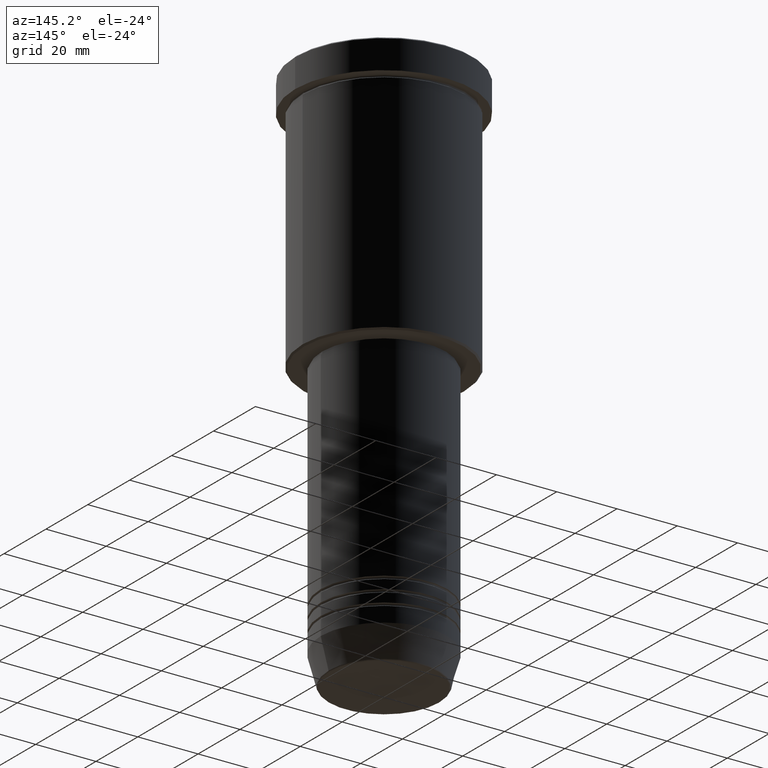
[diagram: clean part render]
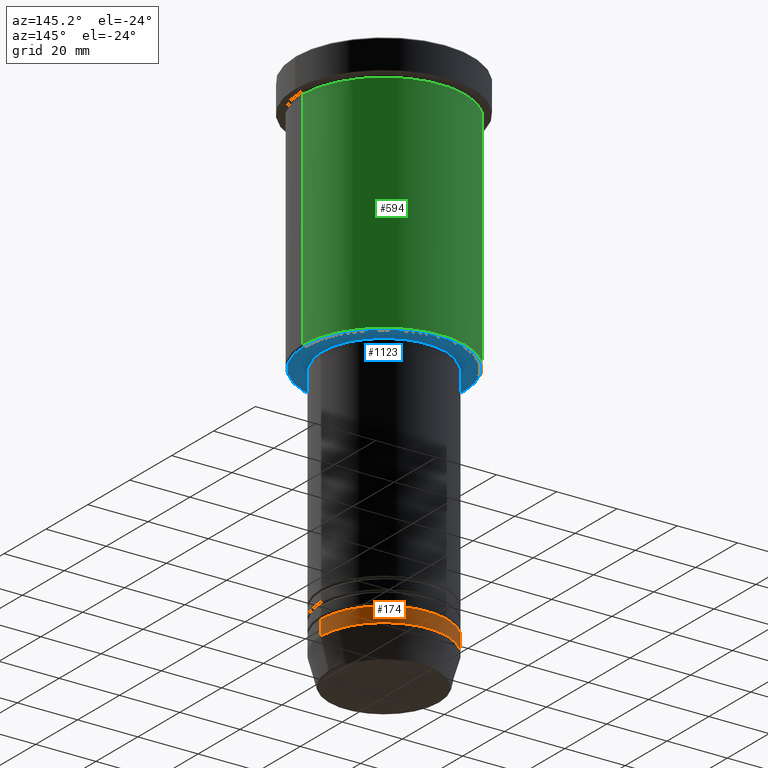
[diagram: same view with three faces highlighted in distinct colors, each labeled with its STEP entity id]
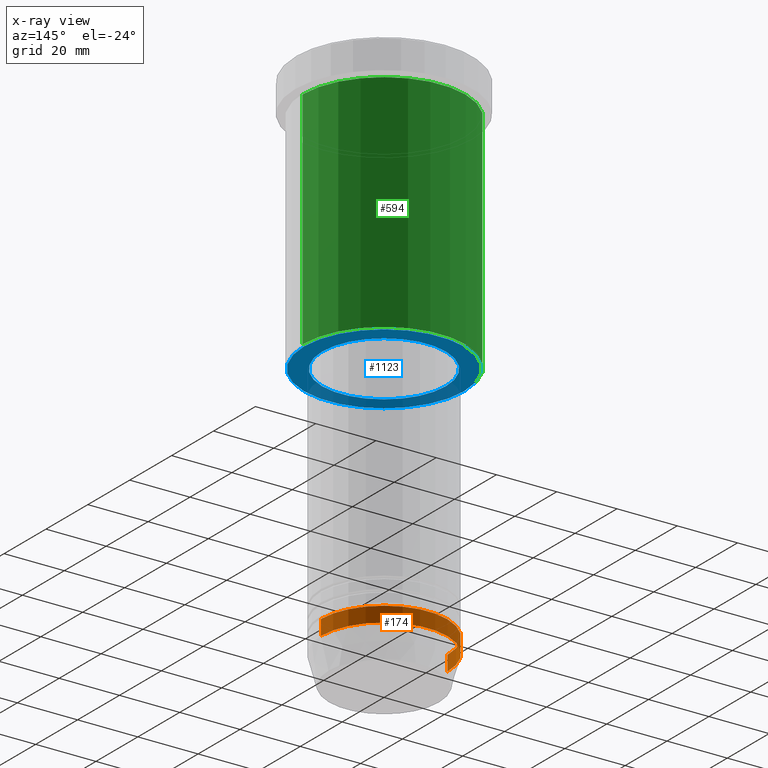
[diagram: x-ray of the same camera — body ghosted, the three highlighted faces saturated]
A machine part, auxiliary view with three faces highlighted in distinct colors.
The next image is the same camera in x-ray (body ghosted, the three faces saturated) — at least one of them is partly hidden behind the body in this view.
Their STEP definitions:

[orange] entity #174 — the highlighted cylindrical surface (partial cylindrical patch) has radius 21 mm, axis along (-0, -0, 1).
#15 = LINE ( 'NONE', #733, #451 ) ;
#54 = DIRECTION ( 'NONE',  ( 1.000000000000000000, 0.000000000000000000, 0.000000000000000000 ) ) ;
#76 = EDGE_CURVE ( 'NONE', #655, #413, #309, .T. ) ;
#102 = DIRECTION ( 'NONE',  ( -0.000000000000000000, -0.000000000000000000, 1.000000000000000000 ) ) ;
#131 = CARTESIAN_POINT ( 'NONE',  ( 21.00000000000000000, 0.000000000000000000, -165.9999999999999716 ) ) ;
#164 = CARTESIAN_POINT ( 'NONE',  ( 0.000000000000000000, 0.000000000000000000, -165.9999999999999716 ) ) ;
#174 = ADVANCED_FACE ( 'NONE', ( #1136 ), #316, .T. ) ;
#189 = CARTESIAN_POINT ( 'NONE',  ( -21.00000000000000000, 2.571758278209441661E-15, -170.9999999999999716 ) ) ;
#220 = ORIENTED_EDGE ( 'NONE', *, *, #231, .F. ) ;
#231 = EDGE_CURVE ( 'NONE', #984, #655, #826, .T. ) ;
#245 = EDGE_CURVE ( 'NONE', #984, #432, #433, .T. ) ;
#269 = CARTESIAN_POINT ( 'NONE',  ( 21.00000000000000000, 0.000000000000000000, 0.000000000000000000 ) ) ;
#296 = EDGE_LOOP ( 'NONE', ( #440, #1176, #800, #220 ) ) ;
#309 = CIRCLE ( 'NONE', #726, 21.00000000000000000 ) ;
#316 = CYLINDRICAL_SURFACE ( 'NONE', #682, 21.00000000000000000 ) ;
#401 = DIRECTION ( 'NONE',  ( -0.000000000000000000, -0.000000000000000000, 1.000000000000000000 ) ) ;
#413 = VERTEX_POINT ( 'NONE', #436 ) ;
#432 = VERTEX_POINT ( 'NONE', #189 ) ;
#433 = CIRCLE ( 'NONE', #1108, 21.00000000000000000 ) ;
#436 = CARTESIAN_POINT ( 'NONE',  ( -21.00000000000000000, 2.571758278209441661E-15, -165.9999999999999716 ) ) ;
#440 = ORIENTED_EDGE ( 'NONE', *, *, #245, .T. ) ;
#451 = VECTOR ( 'NONE', #102, 1000.000000000000000 ) ;
#606 = DIRECTION ( 'NONE',  ( 1.000000000000000000, 0.000000000000000000, 0.000000000000000000 ) ) ;
#655 = VERTEX_POINT ( 'NONE', #131 ) ;
#673 = DIRECTION ( 'NONE',  ( -0.000000000000000000, -0.000000000000000000, 1.000000000000000000 ) ) ;
#682 = AXIS2_PLACEMENT_3D ( 'NONE', #882, #673, #54 ) ;
#693 = CARTESIAN_POINT ( 'NONE',  ( 21.00000000000000000, 0.000000000000000000, -170.9999999999999716 ) ) ;
#726 = AXIS2_PLACEMENT_3D ( 'NONE', #164, #401, #606 ) ;
#733 = CARTESIAN_POINT ( 'NONE',  ( -21.00000000000000000, 2.571758278209441661E-15, 0.000000000000000000 ) ) ;
#800 = ORIENTED_EDGE ( 'NONE', *, *, #76, .F. ) ;
#813 = DIRECTION ( 'NONE',  ( -0.000000000000000000, -0.000000000000000000, 1.000000000000000000 ) ) ;
#826 = LINE ( 'NONE', #269, #857 ) ;
#857 = VECTOR ( 'NONE', #813, 1000.000000000000000 ) ;
#861 = EDGE_CURVE ( 'NONE', #432, #413, #15, .T. ) ;
#865 = DIRECTION ( 'NONE',  ( -0.000000000000000000, -0.000000000000000000, 1.000000000000000000 ) ) ;
#882 = CARTESIAN_POINT ( 'NONE',  ( 0.000000000000000000, 0.000000000000000000, 0.000000000000000000 ) ) ;
#975 = CARTESIAN_POINT ( 'NONE',  ( 0.000000000000000000, 0.000000000000000000, -170.9999999999999716 ) ) ;
#984 = VERTEX_POINT ( 'NONE', #693 ) ;
#1108 = AXIS2_PLACEMENT_3D ( 'NONE', #975, #865, #1141 ) ;
#1136 = FACE_OUTER_BOUND ( 'NONE', #296, .T. ) ;
#1141 = DIRECTION ( 'NONE',  ( 1.000000000000000000, 0.000000000000000000, 0.000000000000000000 ) ) ;
#1176 = ORIENTED_EDGE ( 'NONE', *, *, #861, .T. ) ;

[blue] entity #1123 — the highlighted planar face has unit normal (0, 0, -1).
#32 = VERTEX_POINT ( 'NONE', #211 ) ;
#37 = VERTEX_POINT ( 'NONE', #380 ) ;
#43 = CARTESIAN_POINT ( 'NONE',  ( 0.000000000000000000, 0.000000000000000000, -86.00000000000000000 ) ) ;
#44 = AXIS2_PLACEMENT_3D ( 'NONE', #43, #742, #127 ) ;
#58 = DIRECTION ( 'NONE',  ( -1.000000000000000000, 0.000000000000000000, 0.000000000000000000 ) ) ;
#86 = CIRCLE ( 'NONE', #675, 26.50000000000001066 ) ;
#117 = DIRECTION ( 'NONE',  ( 0.000000000000000000, 0.000000000000000000, -1.000000000000000000 ) ) ;
#127 = DIRECTION ( 'NONE',  ( 1.000000000000000000, 0.000000000000000000, 0.000000000000000000 ) ) ;
#206 = ORIENTED_EDGE ( 'NONE', *, *, #562, .T. ) ;
#211 = CARTESIAN_POINT ( 'NONE',  ( -20.50000000000000000, 2.510525938252074481E-15, -86.00000000000000000 ) ) ;
#213 = DIRECTION ( 'NONE',  ( 0.000000000000000000, 0.000000000000000000, -1.000000000000000000 ) ) ;
#238 = CARTESIAN_POINT ( 'NONE',  ( 20.50000000000000000, 0.000000000000000000, -86.00000000000000000 ) ) ;
#246 = CARTESIAN_POINT ( 'NONE',  ( 0.000000000000000000, 0.000000000000000000, -86.00000000000000000 ) ) ;
#267 = CARTESIAN_POINT ( 'NONE',  ( 0.000000000000000000, 0.000000000000000000, -86.00000000000000000 ) ) ;
#275 = FACE_BOUND ( 'NONE', #793, .T. ) ;
#380 = CARTESIAN_POINT ( 'NONE',  ( 26.50000000000001066, 0.000000000000000000, -86.00000000000000000 ) ) ;
#457 = EDGE_LOOP ( 'NONE', ( #206, #582 ) ) ;
#458 = DIRECTION ( 'NONE',  ( -1.000000000000000000, 0.000000000000000000, -0.000000000000000000 ) ) ;
#538 = DIRECTION ( 'NONE',  ( -1.000000000000000000, 0.000000000000000000, 0.000000000000000000 ) ) ;
#542 = ORIENTED_EDGE ( 'NONE', *, *, #721, .T. ) ;
#543 = FACE_OUTER_BOUND ( 'NONE', #457, .T. ) ;
#549 = CIRCLE ( 'NONE', #44, 20.50000000000000000 ) ;
#562 = EDGE_CURVE ( 'NONE', #37, #840, #737, .T. ) ;
#582 = ORIENTED_EDGE ( 'NONE', *, *, #1111, .T. ) ;
#675 = AXIS2_PLACEMENT_3D ( 'NONE', #267, #117, #538 ) ;
#721 = EDGE_CURVE ( 'NONE', #32, #990, #756, .T. ) ;
#729 = PLANE ( 'NONE',  #735 ) ;
#735 = AXIS2_PLACEMENT_3D ( 'NONE', #812, #905, #458 ) ;
#737 = CIRCLE ( 'NONE', #1124, 26.50000000000001066 ) ;
#742 = DIRECTION ( 'NONE',  ( -0.000000000000000000, -0.000000000000000000, 1.000000000000000000 ) ) ;
#756 = CIRCLE ( 'NONE', #833, 20.50000000000000000 ) ;
#792 = DIRECTION ( 'NONE',  ( 1.000000000000000000, 0.000000000000000000, 0.000000000000000000 ) ) ;
#793 = EDGE_LOOP ( 'NONE', ( #1027, #542 ) ) ;
#812 = CARTESIAN_POINT ( 'NONE',  ( 0.000000000000000000, 27.00000000000000355, -86.00000000000000000 ) ) ;
#833 = AXIS2_PLACEMENT_3D ( 'NONE', #246, #883, #792 ) ;
#840 = VERTEX_POINT ( 'NONE', #996 ) ;
#883 = DIRECTION ( 'NONE',  ( -0.000000000000000000, -0.000000000000000000, 1.000000000000000000 ) ) ;
#905 = DIRECTION ( 'NONE',  ( 0.000000000000000000, 0.000000000000000000, -1.000000000000000000 ) ) ;
#944 = EDGE_CURVE ( 'NONE', #990, #32, #549, .T. ) ;
#990 = VERTEX_POINT ( 'NONE', #238 ) ;
#996 = CARTESIAN_POINT ( 'NONE',  ( -26.50000000000001066, 3.275930187719170735E-15, -86.00000000000000000 ) ) ;
#1018 = CARTESIAN_POINT ( 'NONE',  ( 0.000000000000000000, 0.000000000000000000, -86.00000000000000000 ) ) ;
#1027 = ORIENTED_EDGE ( 'NONE', *, *, #944, .T. ) ;
#1111 = EDGE_CURVE ( 'NONE', #840, #37, #86, .T. ) ;
#1123 = ADVANCED_FACE ( 'NONE', ( #543, #275 ), #729, .T. ) ;
#1124 = AXIS2_PLACEMENT_3D ( 'NONE', #1018, #213, #58 ) ;

[green] entity #594 — the highlighted cylindrical surface (partial cylindrical patch) has radius 27 mm, axis along (-0, -0, 1).
#31 = DIRECTION ( 'NONE',  ( -1.000000000000000000, 0.000000000000000000, 0.000000000000000000 ) ) ;
#49 = DIRECTION ( 'NONE',  ( 1.000000000000000000, 0.000000000000000000, 0.000000000000000000 ) ) ;
#79 = CARTESIAN_POINT ( 'NONE',  ( -27.00000000000000355, 3.306546357697854128E-15, -85.49999999999998579 ) ) ;
#82 = FACE_OUTER_BOUND ( 'NONE', #620, .T. ) ;
#110 = AXIS2_PLACEMENT_3D ( 'NONE', #698, #897, #619 ) ;
#116 = VERTEX_POINT ( 'NONE', #421 ) ;
#119 = CARTESIAN_POINT ( 'NONE',  ( 0.000000000000000000, 0.000000000000000000, -10.99999999999999289 ) ) ;
#135 = VERTEX_POINT ( 'NONE', #79 ) ;
#156 = VERTEX_POINT ( 'NONE', #262 ) ;
#201 = VECTOR ( 'NONE', #577, 1000.000000000000000 ) ;
#209 = CIRCLE ( 'NONE', #356, 27.00000000000000355 ) ;
#232 = CARTESIAN_POINT ( 'NONE',  ( 27.00000000000000355, 0.000000000000000000, -10.99999999999999289 ) ) ;
#262 = CARTESIAN_POINT ( 'NONE',  ( 27.00000000000000355, 0.000000000000000000, -85.49999999999998579 ) ) ;
#304 = VECTOR ( 'NONE', #1057, 1000.000000000000000 ) ;
#356 = AXIS2_PLACEMENT_3D ( 'NONE', #843, #760, #31 ) ;
#421 = CARTESIAN_POINT ( 'NONE',  ( -27.00000000000000355, 3.306546357697854128E-15, -10.99999999999999289 ) ) ;
#464 = EDGE_CURVE ( 'NONE', #156, #135, #209, .T. ) ;
#470 = LINE ( 'NONE', #747, #201 ) ;
#577 = DIRECTION ( 'NONE',  ( -0.000000000000000000, -0.000000000000000000, 1.000000000000000000 ) ) ;
#594 = ADVANCED_FACE ( 'NONE', ( #82 ), #983, .T. ) ;
#619 = DIRECTION ( 'NONE',  ( 1.000000000000000000, 0.000000000000000000, 0.000000000000000000 ) ) ;
#620 = EDGE_LOOP ( 'NONE', ( #684, #1158, #847, #1115 ) ) ;
#684 = ORIENTED_EDGE ( 'NONE', *, *, #464, .T. ) ;
#698 = CARTESIAN_POINT ( 'NONE',  ( 0.000000000000000000, 0.000000000000000000, 0.000000000000000000 ) ) ;
#707 = LINE ( 'NONE', #1061, #304 ) ;
#747 = CARTESIAN_POINT ( 'NONE',  ( 27.00000000000000355, 0.000000000000000000, 0.000000000000000000 ) ) ;
#754 = EDGE_CURVE ( 'NONE', #135, #116, #707, .T. ) ;
#760 = DIRECTION ( 'NONE',  ( -0.000000000000000000, -0.000000000000000000, 1.000000000000000000 ) ) ;
#769 = DIRECTION ( 'NONE',  ( -0.000000000000000000, -0.000000000000000000, 1.000000000000000000 ) ) ;
#843 = CARTESIAN_POINT ( 'NONE',  ( 0.000000000000000000, 0.000000000000000000, -85.49999999999998579 ) ) ;
#847 = ORIENTED_EDGE ( 'NONE', *, *, #917, .F. ) ;
#897 = DIRECTION ( 'NONE',  ( -0.000000000000000000, -0.000000000000000000, 1.000000000000000000 ) ) ;
#917 = EDGE_CURVE ( 'NONE', #1035, #116, #1068, .T. ) ;
#956 = EDGE_CURVE ( 'NONE', #156, #1035, #470, .T. ) ;
#983 = CYLINDRICAL_SURFACE ( 'NONE', #110, 27.00000000000000355 ) ;
#1025 = AXIS2_PLACEMENT_3D ( 'NONE', #119, #769, #49 ) ;
#1035 = VERTEX_POINT ( 'NONE', #232 ) ;
#1057 = DIRECTION ( 'NONE',  ( -0.000000000000000000, -0.000000000000000000, 1.000000000000000000 ) ) ;
#1061 = CARTESIAN_POINT ( 'NONE',  ( -27.00000000000000355, 3.306546357697854128E-15, 0.000000000000000000 ) ) ;
#1068 = CIRCLE ( 'NONE', #1025, 27.00000000000000355 ) ;
#1115 = ORIENTED_EDGE ( 'NONE', *, *, #956, .F. ) ;
#1158 = ORIENTED_EDGE ( 'NONE', *, *, #754, .T. ) ;